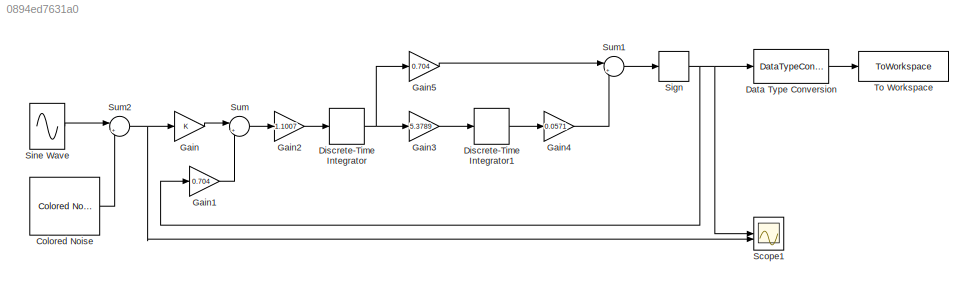
MODEL slx_0894ed7631a0
KIND model
CONFIG AbsTol = auto
CONFIG EnableMultiTasking = off
CONFIG FixedStep = auto
CONFIG MaxStep = auto
CONFIG MinStep = auto
CONFIG RelTol = 1e-3
CONFIG SampleTimeConstraint = Unconstrained
CONFIG SolverName = VariableStepAuto
CONFIG StartTime = 0.0
CONFIG StopTime = 1.085
BLOCK [Reference] Colored Noise  REF=dspsrcs4/Colored Noise
  LibrarySourceBlock = audiosources/Colored Noise
  SourceBlock = dspsrcs4/Colored Noise
  SourceType = dsp.simulink.ColoredNoise
BLOCK [DataTypeConversion] Data Type Conversion
  OutDataTypeStr = double
  RndMeth = Floor
  SaturateOnIntegerOverflow = off
BLOCK [DiscreteIntegrator] Discrete-Time Integrator
  ICPrevOutput = DiscIntNeverNeededParam
  ICPrevScaledInput = DiscIntNeverNeededParam
  InitialConditionSetting = Auto
  SampleTime = -1
BLOCK [DiscreteIntegrator] Discrete-Time Integrator1
  ICPrevOutput = DiscIntNeverNeededParam
  ICPrevScaledInput = DiscIntNeverNeededParam
  InitialConditionSetting = Auto
  SampleTime = -1
BLOCK [Gain] Gain
BLOCK [Gain] Gain1
  Gain = 0.704
BLOCK [Gain] Gain2
  Gain = 1.1007
BLOCK [Gain] Gain3
  Gain = 5.3789
BLOCK [Gain] Gain4
  Gain = 0.0571
BLOCK [Gain] Gain5
  Gain = 0.704
BLOCK [Scope] Scope1
  Floating = off
  NumInputPorts = 2
  ScopeSpecificationString = Simulink.scopes.TimeScopeBlockCfg('CurrentConfiguration', extmgr.ConfigurationSet(extmgr.Configuration('Core','General UI',true),extmgr.Configuration('Core','Source UI',true),extmgr.Configuration('Sources','WiredSimulink',true,'DataLoggingVariableName','ScopeData1'),extmgr.Configuration('Visuals','Time Domain',true,'SerializedDisplays',{struct('MinYLimReal','-2.24948','MaxYLimReal','2.24945','YLab...<+1534ch>
BLOCK [Signum] Sign
BLOCK [Sin] Sine Wave
  Amplitude = 0.5
  Frequency = 306.796157
  SampleTime = 1.22e-7
  Samples = 150000
  VectorParams1D = off
BLOCK [Sum] Sum
  Inputs = |+-
BLOCK [Sum] Sum1
  Inputs = |++
BLOCK [Sum] Sum2
  Inputs = |++
BLOCK [ToWorkspace] To Workspace
  FixptAsFi = on
  MaxDataPoints = inf
  SampleTime = -1
  VariableName = dsm_out
LINE Colored Noise:1 -> Sum2:2
LINE Data Type Conversion:1 -> To Workspace:1
LINE Discrete-Time Integrator1:1 -> Gain4:1
NET Discrete-Time Integrator:1 -> Gain3:1, Gain5:1
LINE Gain1:1 -> Sum:2
LINE Gain2:1 -> Discrete-Time Integrator:1
LINE Gain3:1 -> Discrete-Time Integrator1:1
LINE Gain4:1 -> Sum1:2
LINE Gain5:1 -> Sum1:1
LINE Gain:1 -> Sum:1
NET Sign:1 -> Data Type Conversion:1, Gain1:1, Scope1:1
LINE Sine Wave:1 -> Sum2:1
LINE Sum1:1 -> Sign:1
NET Sum2:1 -> Gain:1, Scope1:2
LINE Sum:1 -> Gain2:1
note: NET lines group one-source signal fan-out (src -> all destinations, sorted); 1:1 wires keep LINE
